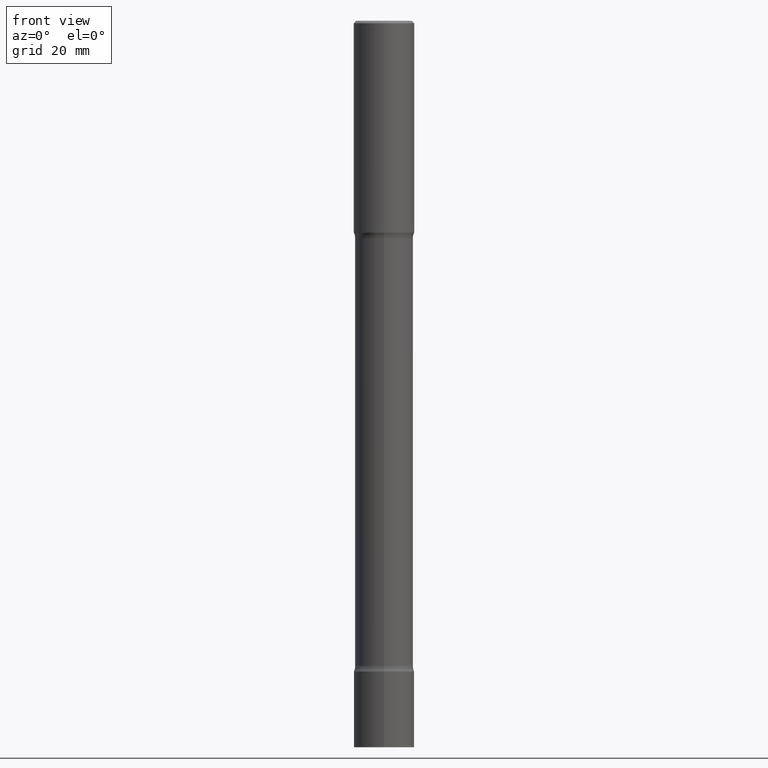
[diagram: clean part render]
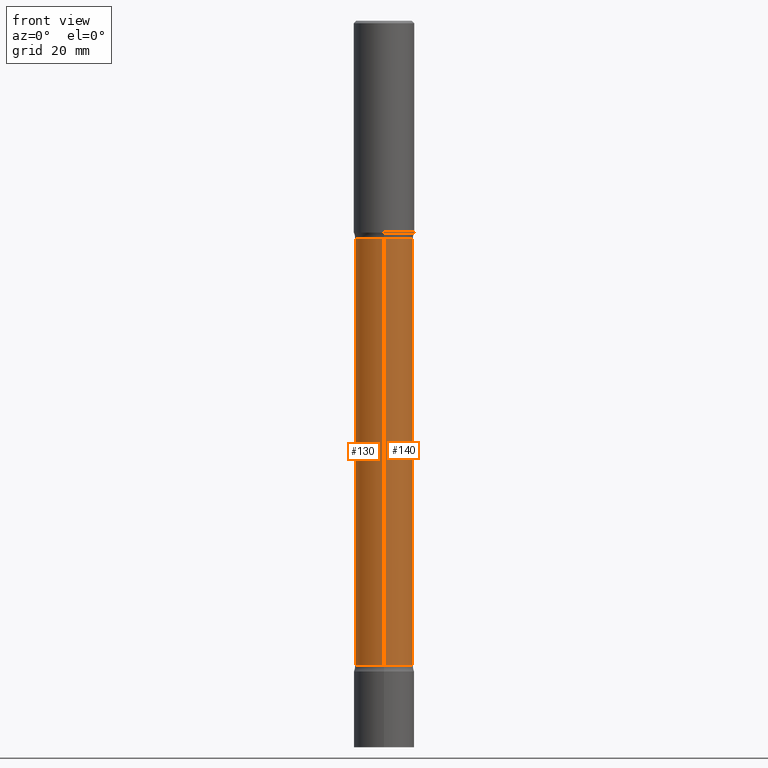
[diagram: same view with one multi-face feature highlighted, each face labeled with its STEP entity id]
A machine part, front view. The highlighted faces form ONE feature: a constant-radius fillet chain: 2 tangent blend faces with common blend radius 6.096 mm. The faces share edges in the B-rep.
Their STEP definitions:
[1] entity #140 (Cylinder):
#32 = EDGE_LOOP ( 'NONE', ( #350, #295, #471, #94 ) ) ;
#35 = LINE ( 'NONE', #183, #188 ) ;
#43 = EDGE_CURVE ( 'NONE', #473, #105, #35, .T. ) ;
#94 = ORIENTED_EDGE ( 'NONE', *, *, #435, .F. ) ;
#95 = AXIS2_PLACEMENT_3D ( 'NONE', #369, #483, #485 ) ;
#105 = VERTEX_POINT ( 'NONE', #159 ) ;
#123 = CYLINDRICAL_SURFACE ( 'NONE', #95, 0.2400000000000014622 ) ;
#127 = CARTESIAN_POINT ( 'NONE',  ( 1.675911042644746767E-15, 0.2399999999999935518, -1.798989794855665902 ) ) ;
#133 = CIRCLE ( 'NONE', #229, 0.2400000000000019340 ) ;
#139 = DIRECTION ( 'NONE',  ( 2.857394861974549729E-29, -2.901579781577625714E-15, -1.000000000000000000 ) ) ;
#140 = ADVANCED_FACE ( 'NONE', ( #160 ), #123, .T. ) ;
#151 = VERTEX_POINT ( 'NONE', #279 ) ;
#152 = CARTESIAN_POINT ( 'NONE',  ( 1.675911042644863321E-15, 0.2399999999999808675, -6.000000000000002665 ) ) ;
#159 = CARTESIAN_POINT ( 'NONE',  ( -1.680822009453898613E-15, -0.2400000000000195310, -5.326010205144336318 ) ) ;
#160 = FACE_OUTER_BOUND ( 'NONE', #32, .T. ) ;
#183 = CARTESIAN_POINT ( 'NONE',  ( -1.646519519465028325E-15, -0.2400000000000220568, -6.000000000000000888 ) ) ;
#188 = VECTOR ( 'NONE', #427, 39.37007874015748143 ) ;
#203 = EDGE_CURVE ( 'NONE', #213, #473, #133, .T. ) ;
#213 = VERTEX_POINT ( 'NONE', #127 ) ;
#229 = AXIS2_PLACEMENT_3D ( 'NONE', #439, #325, #277 ) ;
#230 = VECTOR ( 'NONE', #139, 39.37007874015748143 ) ;
#277 = DIRECTION ( 'NONE',  ( 6.982962677686265922E-15, 1.000000000000000000, -3.414809992080301512E-15 ) ) ;
#279 = CARTESIAN_POINT ( 'NONE',  ( 1.675911042644840444E-15, 0.2399999999999823386, -5.326010205144338983 ) ) ;
#289 = CARTESIAN_POINT ( 'NONE',  ( 1.300260704910041885E-28, -1.862714868225833602E-14, -5.326010205144338094 ) ) ;
#295 = ORIENTED_EDGE ( 'NONE', *, *, #43, .T. ) ;
#325 = DIRECTION ( 'NONE',  ( 2.857394861974549729E-29, -2.901579781577625714E-15, -1.000000000000000000 ) ) ;
#334 = DIRECTION ( 'NONE',  ( 2.857394861974549729E-29, -2.901579781577625714E-15, -1.000000000000000000 ) ) ;
#350 = ORIENTED_EDGE ( 'NONE', *, *, #203, .T. ) ;
#354 = AXIS2_PLACEMENT_3D ( 'NONE', #289, #334, #494 ) ;
#361 = EDGE_CURVE ( 'NONE', #151, #105, #395, .T. ) ;
#369 = CARTESIAN_POINT ( 'NONE',  ( 1.492846202594427368E-28, -2.058278384400118105E-14, -6.000000000000001776 ) ) ;
#395 = CIRCLE ( 'NONE', #354, 0.2400000000000009626 ) ;
#427 = DIRECTION ( 'NONE',  ( 2.857394861974549729E-29, -2.901579781577625714E-15, -1.000000000000000000 ) ) ;
#435 = EDGE_CURVE ( 'NONE', #213, #151, #499, .T. ) ;
#439 = CARTESIAN_POINT ( 'NONE',  ( 2.924517050662196265E-29, -8.393217570553099551E-15, -1.798989794855665014 ) ) ;
#471 = ORIENTED_EDGE ( 'NONE', *, *, #361, .F. ) ;
#472 = CARTESIAN_POINT ( 'NONE',  ( -1.680822009454010039E-15, -0.2400000000000103439, -1.798989794855664126 ) ) ;
#473 = VERTEX_POINT ( 'NONE', #472 ) ;
#483 = DIRECTION ( 'NONE',  ( 2.857394861974549729E-29, -2.901579781577625714E-15, -1.000000000000000000 ) ) ;
#485 = DIRECTION ( 'NONE',  ( 6.982962677686265922E-15, 1.000000000000000000, -4.553079989440410693E-15 ) ) ;
#494 = DIRECTION ( 'NONE',  ( 6.982962677686265922E-15, 1.000000000000000000, -4.553079989440420159E-15 ) ) ;
#499 = LINE ( 'NONE', #152, #230 ) ;
[2] entity #130 (Cylinder):
#14 = CARTESIAN_POINT ( 'NONE',  ( 1.492846202594427368E-28, -2.058278384400118105E-14, -6.000000000000001776 ) ) ;
#15 = CYLINDRICAL_SURFACE ( 'NONE', #196, 0.2400000000000014622 ) ;
#35 = LINE ( 'NONE', #183, #188 ) ;
#43 = EDGE_CURVE ( 'NONE', #473, #105, #35, .T. ) ;
#104 = DIRECTION ( 'NONE',  ( 6.982962677686265922E-15, 1.000000000000000000, -3.414809992080301512E-15 ) ) ;
#105 = VERTEX_POINT ( 'NONE', #159 ) ;
#108 = EDGE_LOOP ( 'NONE', ( #155, #507, #220, #179 ) ) ;
#127 = CARTESIAN_POINT ( 'NONE',  ( 1.675911042644746767E-15, 0.2399999999999935518, -1.798989794855665902 ) ) ;
#130 = ADVANCED_FACE ( 'NONE', ( #437 ), #15, .T. ) ;
#136 = DIRECTION ( 'NONE',  ( 6.982962677686265922E-15, 1.000000000000000000, -4.553079989440420159E-15 ) ) ;
#139 = DIRECTION ( 'NONE',  ( 2.857394861974549729E-29, -2.901579781577625714E-15, -1.000000000000000000 ) ) ;
#151 = VERTEX_POINT ( 'NONE', #279 ) ;
#152 = CARTESIAN_POINT ( 'NONE',  ( 1.675911042644863321E-15, 0.2399999999999808675, -6.000000000000002665 ) ) ;
#155 = ORIENTED_EDGE ( 'NONE', *, *, #43, .F. ) ;
#159 = CARTESIAN_POINT ( 'NONE',  ( -1.680822009453898613E-15, -0.2400000000000195310, -5.326010205144336318 ) ) ;
#173 = DIRECTION ( 'NONE',  ( 2.857394861974549729E-29, -2.901579781577625714E-15, -1.000000000000000000 ) ) ;
#179 = ORIENTED_EDGE ( 'NONE', *, *, #240, .F. ) ;
#183 = CARTESIAN_POINT ( 'NONE',  ( -1.646519519465028325E-15, -0.2400000000000220568, -6.000000000000000888 ) ) ;
#188 = VECTOR ( 'NONE', #427, 39.37007874015748143 ) ;
#196 = AXIS2_PLACEMENT_3D ( 'NONE', #14, #408, #360 ) ;
#212 = CARTESIAN_POINT ( 'NONE',  ( 2.924517050662196265E-29, -8.393217570553099551E-15, -1.798989794855665014 ) ) ;
#213 = VERTEX_POINT ( 'NONE', #127 ) ;
#216 = AXIS2_PLACEMENT_3D ( 'NONE', #456, #173, #136 ) ;
#220 = ORIENTED_EDGE ( 'NONE', *, *, #435, .T. ) ;
#230 = VECTOR ( 'NONE', #139, 39.37007874015748143 ) ;
#240 = EDGE_CURVE ( 'NONE', #105, #151, #296, .T. ) ;
#266 = AXIS2_PLACEMENT_3D ( 'NONE', #212, #267, #104 ) ;
#267 = DIRECTION ( 'NONE',  ( 2.857394861974549729E-29, -2.901579781577625714E-15, -1.000000000000000000 ) ) ;
#279 = CARTESIAN_POINT ( 'NONE',  ( 1.675911042644840444E-15, 0.2399999999999823386, -5.326010205144338983 ) ) ;
#296 = CIRCLE ( 'NONE', #216, 0.2400000000000009626 ) ;
#360 = DIRECTION ( 'NONE',  ( 6.982962677686265922E-15, 1.000000000000000000, -4.553079989440410693E-15 ) ) ;
#408 = DIRECTION ( 'NONE',  ( 2.857394861974549729E-29, -2.901579781577625714E-15, -1.000000000000000000 ) ) ;
#427 = DIRECTION ( 'NONE',  ( 2.857394861974549729E-29, -2.901579781577625714E-15, -1.000000000000000000 ) ) ;
#435 = EDGE_CURVE ( 'NONE', #213, #151, #499, .T. ) ;
#437 = FACE_OUTER_BOUND ( 'NONE', #108, .T. ) ;
#447 = EDGE_CURVE ( 'NONE', #473, #213, #481, .T. ) ;
#456 = CARTESIAN_POINT ( 'NONE',  ( 1.300260704910041885E-28, -1.862714868225833602E-14, -5.326010205144338094 ) ) ;
#472 = CARTESIAN_POINT ( 'NONE',  ( -1.680822009454010039E-15, -0.2400000000000103439, -1.798989794855664126 ) ) ;
#473 = VERTEX_POINT ( 'NONE', #472 ) ;
#481 = CIRCLE ( 'NONE', #266, 0.2400000000000019340 ) ;
#499 = LINE ( 'NONE', #152, #230 ) ;
#507 = ORIENTED_EDGE ( 'NONE', *, *, #447, .T. ) ;